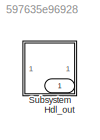
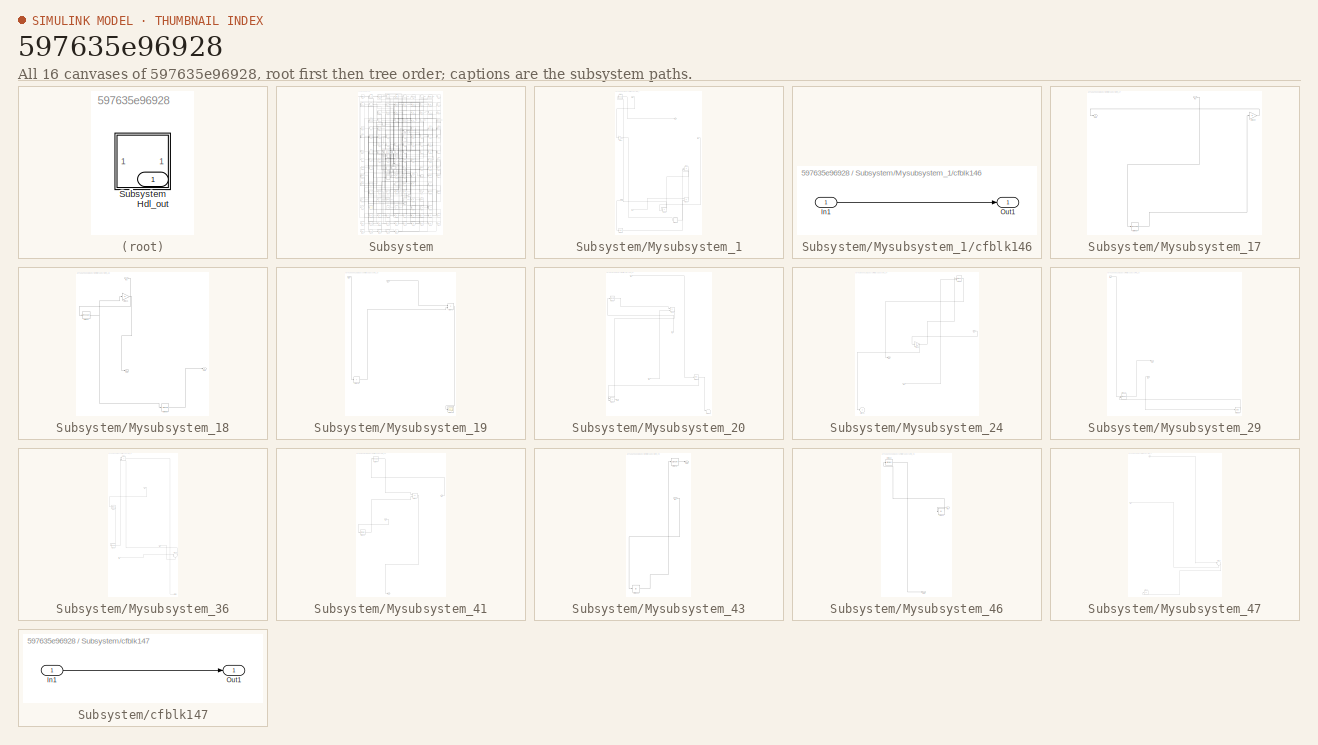
[diagram: thumbnail index - all 16 canvases of the model, root first then tree order]
MODEL slx_597635e96928
KIND model
CONFIG AbsTol = auto
CONFIG EnableMultiTasking = off
CONFIG FixedStep = auto
CONFIG MaxStep = auto
CONFIG MinStep = auto
CONFIG RelTol = 1e-3
CONFIG SampleTimeConstraint = Unconstrained
CONFIG SolverName = VariableStepAuto
CONFIG StartTime = 0.0
CONFIG StopTime = 10.0
BLOCK [Outport] Hdl_out
  OutDataTypeStr = uint8
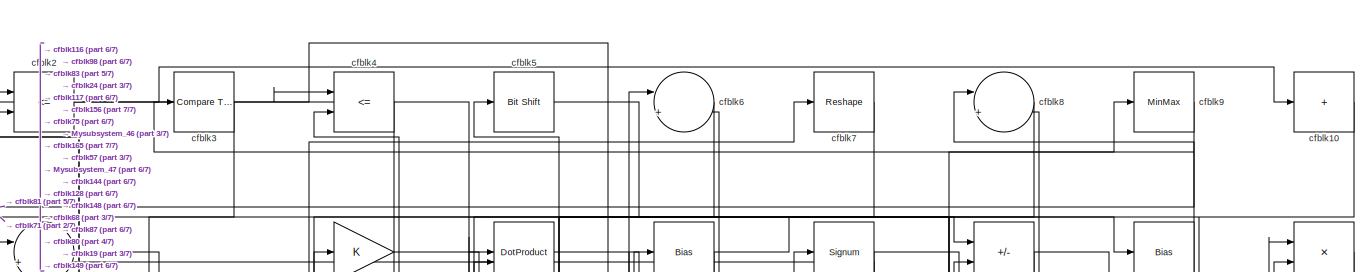
[diagram: Subsystem - part 1/7, full width, top band]
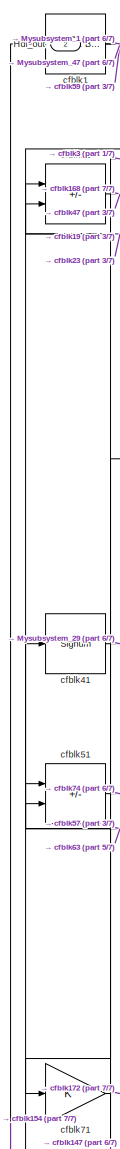
[diagram: Subsystem - part 2/7, top left region]
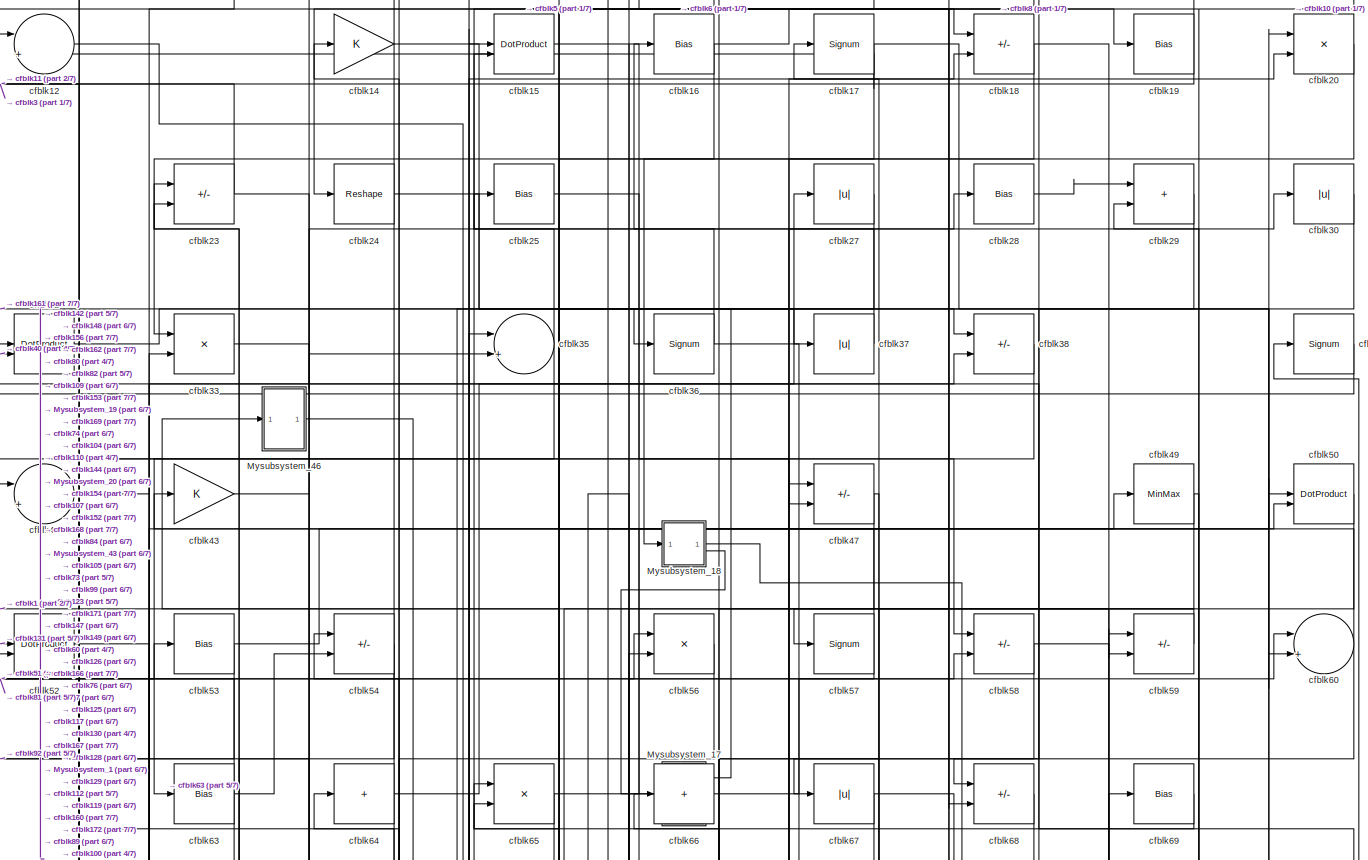
[diagram: Subsystem - part 3/7, full width, top band]
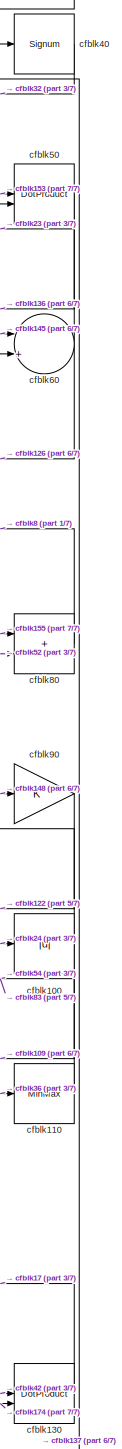
[diagram: Subsystem - part 4/7, middle right region]
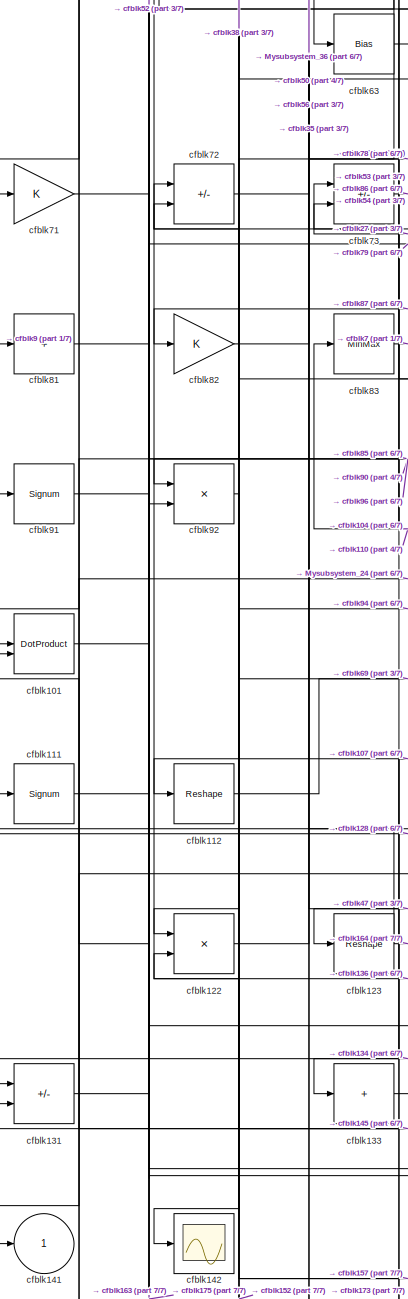
[diagram: Subsystem - part 5/7, middle left region]
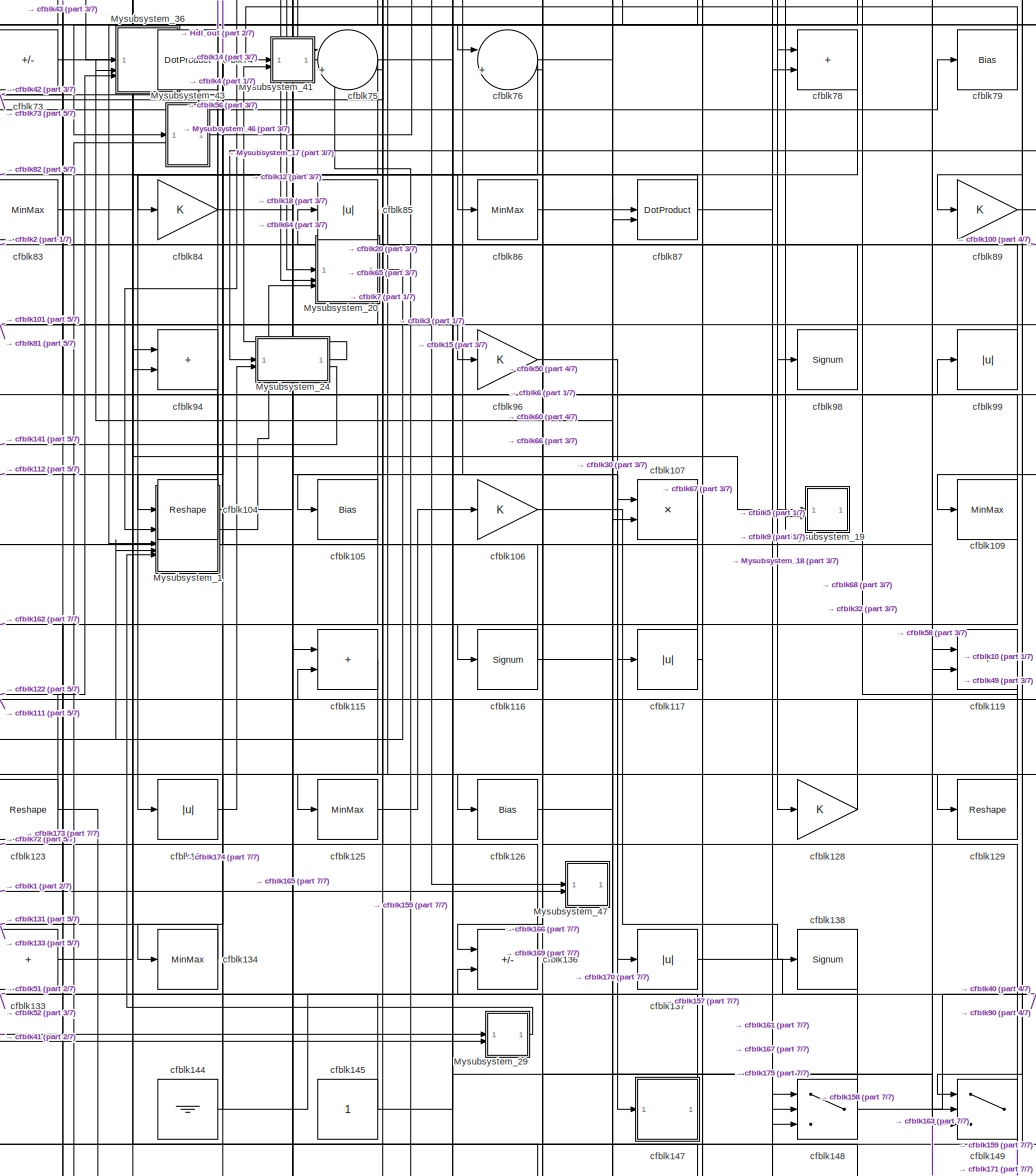
[diagram: Subsystem - part 6/7, central region]
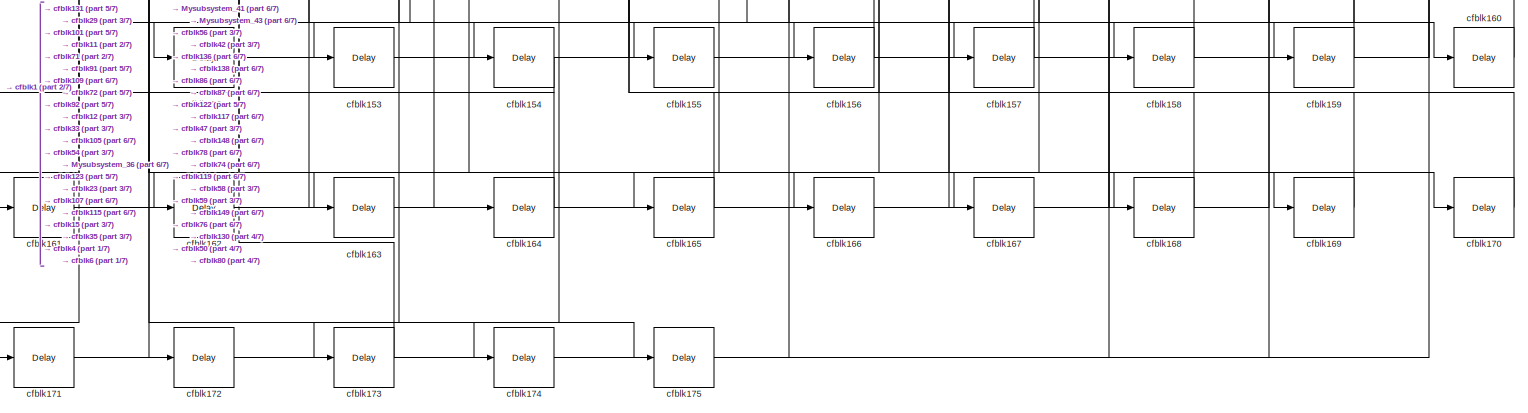
[diagram: Subsystem - part 7/7, full width, bottom band]
BLOCK [SubSystem] Subsystem
BLOCK [Outport] Subsystem/Hdl_out
  OutDataTypeStr = uint8
  Port = 2
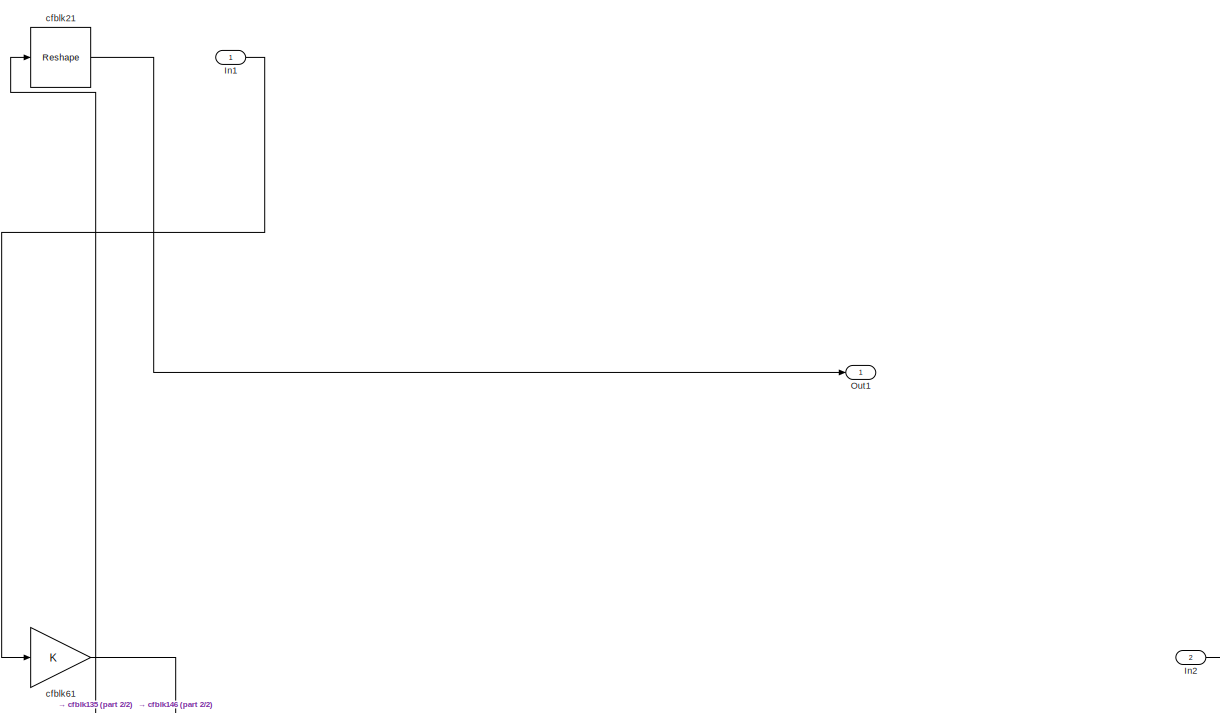
[diagram: Subsystem/Mysubsystem_1 - part 1/2, full width, top band]
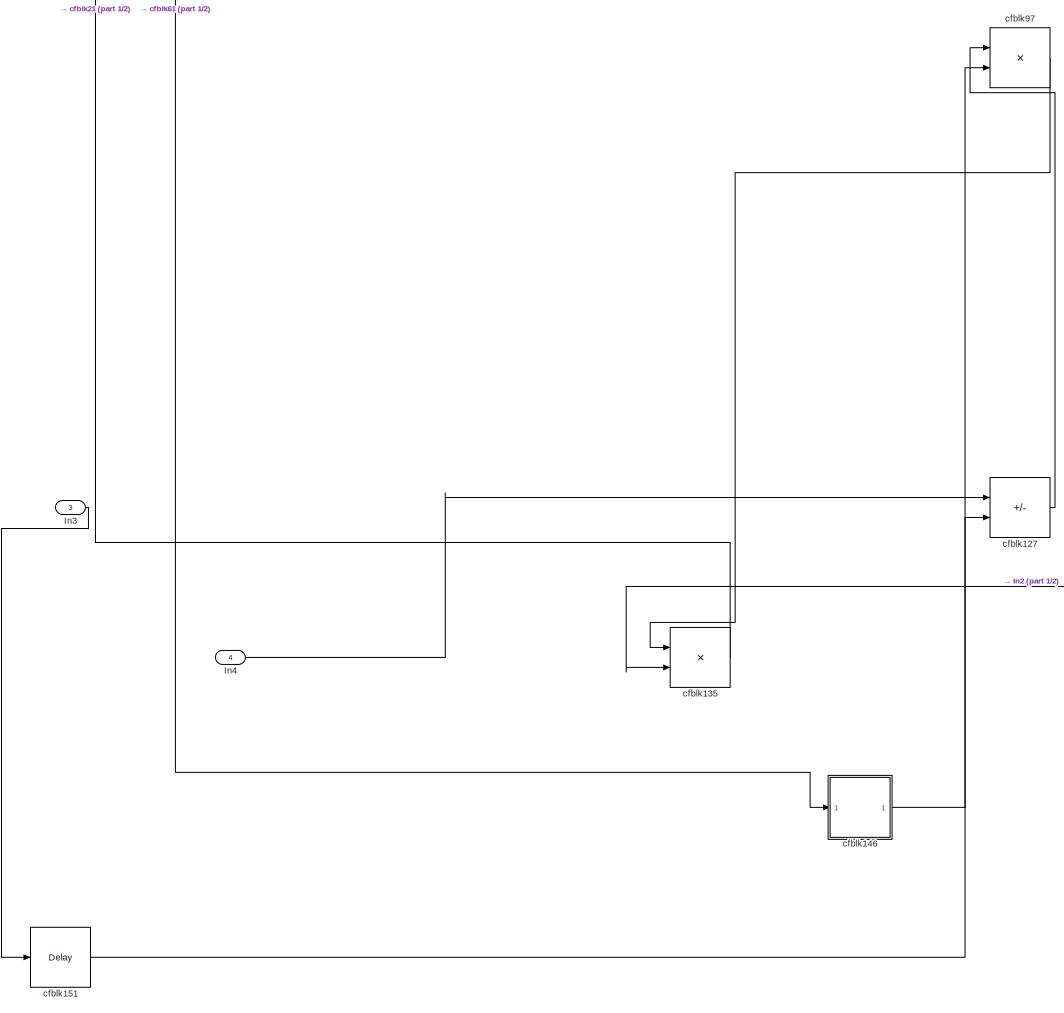
[diagram: Subsystem/Mysubsystem_1 - part 2/2, full width, bottom band]
BLOCK [SubSystem] Subsystem/Mysubsystem_1
  RTWFcnName = Mysubsystem_1
  RTWFcnNameOpts = User specified
  RTWFileNameOpts = Use function name
  RTWSystemCode = Reusable function
  TreatAsAtomicUnit = on
BLOCK [Inport] Subsystem/Mysubsystem_1/In1
BLOCK [Inport] Subsystem/Mysubsystem_1/In2
  Port = 2
BLOCK [Inport] Subsystem/Mysubsystem_1/In3
  Port = 3
BLOCK [Inport] Subsystem/Mysubsystem_1/In4
  Port = 4
BLOCK [Outport] Subsystem/Mysubsystem_1/Out1
BLOCK [Sum] Subsystem/Mysubsystem_1/cfblk127
  IconShape = rectangular
  Inputs = +-
BLOCK [Product] Subsystem/Mysubsystem_1/cfblk135
  Inputs = */
  RndMeth = Zero
  SaturateOnIntegerOverflow = on
BLOCK [SubSystem] Subsystem/Mysubsystem_1/cfblk146
  LibrarySourceBlock = hdlsllib/Ports &\nSubsystems/Subsystem
BLOCK [Inport] Subsystem/Mysubsystem_1/cfblk146/In1
BLOCK [Outport] Subsystem/Mysubsystem_1/cfblk146/Out1
BLOCK [Delay] Subsystem/Mysubsystem_1/cfblk151
  InputPortMap = u0
  SampleTime = 1
BLOCK [Reshape] Subsystem/Mysubsystem_1/cfblk21
BLOCK [Gain] Subsystem/Mysubsystem_1/cfblk61
BLOCK [Product] Subsystem/Mysubsystem_1/cfblk97
  Inputs = */
  RndMeth = Zero
  SaturateOnIntegerOverflow = on
BLOCK [SubSystem] Subsystem/Mysubsystem_17
  RTWFcnName = Mysubsystem_17
  RTWFcnNameOpts = User specified
  RTWFileNameOpts = Use function name
  RTWSystemCode = Reusable function
  TreatAsAtomicUnit = on
BLOCK [Inport] Subsystem/Mysubsystem_17/In1
BLOCK [Outport] Subsystem/Mysubsystem_17/Out1
BLOCK [Gain] Subsystem/Mysubsystem_17/cfblk39
BLOCK [Reshape] Subsystem/Mysubsystem_17/cfblk93
BLOCK [SubSystem] Subsystem/Mysubsystem_18
  RTWFcnName = Mysubsystem_18
  RTWFcnNameOpts = User specified
  RTWFileNameOpts = Use function name
  RTWSystemCode = Reusable function
  TreatAsAtomicUnit = on
BLOCK [Inport] Subsystem/Mysubsystem_18/In1
BLOCK [Outport] Subsystem/Mysubsystem_18/Out1
BLOCK [Outport] Subsystem/Mysubsystem_18/Out2
  Port = 2
BLOCK [Gain] Subsystem/Mysubsystem_18/cfblk26
BLOCK [Reshape] Subsystem/Mysubsystem_18/cfblk34
BLOCK [Signum] Subsystem/Mysubsystem_18/cfblk88
BLOCK [SubSystem] Subsystem/Mysubsystem_19
  RTWFcnName = Mysubsystem_19
  RTWFcnNameOpts = User specified
  RTWFileNameOpts = Use function name
  RTWSystemCode = Reusable function
  TreatAsAtomicUnit = on
BLOCK [Inport] Subsystem/Mysubsystem_19/In1
BLOCK [Inport] Subsystem/Mysubsystem_19/In2
  Port = 2
BLOCK [Sum] Subsystem/Mysubsystem_19/cfblk114
  IconShape = rectangular
  Inputs = +
BLOCK [Scope] Subsystem/Mysubsystem_19/cfblk140
  Floating = off
  NumInputPorts = 1
  ScopeSpecificationString = Simulink.scopes.TimeScopeBlockCfg('CurrentConfiguration', extmgr.ConfigurationSet(extmgr.Configuration('Core','General UI',true),extmgr.Configuration('Core','Source UI',true),extmgr.Configuration('Sources','WiredSimulink',true,'DataLoggingVariableName','ScopeData2','DataLoggingSaveFormat','Array','DataLoggingLimitDataPoints',true,'DataLoggingDecimation','1'),extmgr.Configuration('Visuals','Time Do...<+868ch>
BLOCK [Product] Subsystem/Mysubsystem_19/cfblk70
  Inputs = */
  RndMeth = Zero
  SaturateOnIntegerOverflow = on
BLOCK [SubSystem] Subsystem/Mysubsystem_20
  RTWFcnName = Mysubsystem_20
  RTWFcnNameOpts = User specified
  RTWFileNameOpts = Use function name
  RTWSystemCode = Reusable function
  TreatAsAtomicUnit = on
BLOCK [Inport] Subsystem/Mysubsystem_20/In1
BLOCK [Inport] Subsystem/Mysubsystem_20/In2
  Port = 2
BLOCK [Inport] Subsystem/Mysubsystem_20/In3
  Port = 3
BLOCK [Outport] Subsystem/Mysubsystem_20/Out1
BLOCK [Bias] Subsystem/Mysubsystem_20/cfblk108
  Bias = 0.0
  SaturateOnIntegerOverflow = off
BLOCK [Sum] Subsystem/Mysubsystem_20/cfblk121
  IconShape = rectangular
BLOCK [Terminator] Subsystem/Mysubsystem_20/cfblk139
BLOCK [Signum] Subsystem/Mysubsystem_20/cfblk31
BLOCK [Product] Subsystem/Mysubsystem_20/cfblk46
  Inputs = */
  RndMeth = Zero
  SaturateOnIntegerOverflow = on
BLOCK [SubSystem] Subsystem/Mysubsystem_24
  RTWFcnName = Mysubsystem_24
  RTWFcnNameOpts = User specified
  RTWFileNameOpts = Use function name
  RTWSystemCode = Reusable function
  TreatAsAtomicUnit = on
BLOCK [Inport] Subsystem/Mysubsystem_24/In1
BLOCK [Inport] Subsystem/Mysubsystem_24/In2
  Port = 2
BLOCK [Outport] Subsystem/Mysubsystem_24/Out1
BLOCK [Outport] Subsystem/Mysubsystem_24/cfblk141
  Port = 2
  VectorParamsAs1DForOutWhenUnconnected = off
BLOCK [DotProduct] Subsystem/Mysubsystem_24/cfblk48
  OutDataTypeStr = Inherit: Inherit via internal rule
BLOCK [Gain] Subsystem/Mysubsystem_24/cfblk95
BLOCK [SubSystem] Subsystem/Mysubsystem_29
  RTWFcnName = Mysubsystem_29
  RTWFcnNameOpts = User specified
  RTWFileNameOpts = Use function name
  RTWSystemCode = Reusable function
  TreatAsAtomicUnit = on
BLOCK [Inport] Subsystem/Mysubsystem_29/In1
BLOCK [Inport] Subsystem/Mysubsystem_29/In2
  Port = 2
BLOCK [Outport] Subsystem/Mysubsystem_29/Out1
BLOCK [DotProduct] Subsystem/Mysubsystem_29/cfblk132
  OutDataTypeStr = Inherit: Inherit via internal rule
BLOCK [Delay] Subsystem/Mysubsystem_29/cfblk150
  InputPortMap = u0
  SampleTime = 1
BLOCK [SubSystem] Subsystem/Mysubsystem_36
  RTWFcnName = Mysubsystem_36
  RTWFcnNameOpts = User specified
  RTWFileNameOpts = Use function name
  RTWSystemCode = Reusable function
  TreatAsAtomicUnit = on
BLOCK [Inport] Subsystem/Mysubsystem_36/In1
BLOCK [Inport] Subsystem/Mysubsystem_36/In2
  Port = 2
BLOCK [Inport] Subsystem/Mysubsystem_36/In3
  Port = 3
BLOCK [Outport] Subsystem/Mysubsystem_36/Out1
BLOCK [Reshape] Subsystem/Mysubsystem_36/cfblk102
BLOCK [Sum] Subsystem/Mysubsystem_36/cfblk118
  Inputs = |++
BLOCK [Sum] Subsystem/Mysubsystem_36/cfblk13
  IconShape = rectangular
BLOCK [MinMax] Subsystem/Mysubsystem_36/cfblk62
BLOCK [SubSystem] Subsystem/Mysubsystem_41
  RTWFcnName = Mysubsystem_41
  RTWFcnNameOpts = User specified
  RTWFileNameOpts = Use function name
  RTWSystemCode = Reusable function
  TreatAsAtomicUnit = on
BLOCK [Inport] Subsystem/Mysubsystem_41/In1
BLOCK [Inport] Subsystem/Mysubsystem_41/In2
  Port = 2
BLOCK [Outport] Subsystem/Mysubsystem_41/Out1
BLOCK [MinMax] Subsystem/Mysubsystem_41/cfblk103
BLOCK [Reshape] Subsystem/Mysubsystem_41/cfblk44
BLOCK [Sum] Subsystem/Mysubsystem_41/cfblk77
  IconShape = rectangular
  Inputs = +-
BLOCK [SubSystem] Subsystem/Mysubsystem_43
  RTWFcnName = Mysubsystem_43
  RTWFcnNameOpts = User specified
  RTWFileNameOpts = Use function name
  RTWSystemCode = Reusable function
  TreatAsAtomicUnit = on
BLOCK [Inport] Subsystem/Mysubsystem_43/In1
BLOCK [Outport] Subsystem/Mysubsystem_43/Out1
BLOCK [Abs] Subsystem/Mysubsystem_43/cfblk113
  SaturateOnIntegerOverflow = off
BLOCK [Signum] Subsystem/Mysubsystem_43/cfblk45
BLOCK [SubSystem] Subsystem/Mysubsystem_46
  RTWFcnName = Mysubsystem_46
  RTWFcnNameOpts = User specified
  RTWFileNameOpts = Use function name
  RTWSystemCode = Reusable function
  TreatAsAtomicUnit = on
BLOCK [Inport] Subsystem/Mysubsystem_46/In1
BLOCK [Outport] Subsystem/Mysubsystem_46/Out1
BLOCK [MinMax] Subsystem/Mysubsystem_46/cfblk22
BLOCK [Abs] Subsystem/Mysubsystem_46/cfblk55
  SaturateOnIntegerOverflow = off
BLOCK [SubSystem] Subsystem/Mysubsystem_47
  RTWFcnName = Mysubsystem_47
  RTWFcnNameOpts = User specified
  RTWFileNameOpts = Use function name
  RTWSystemCode = Reusable function
  TreatAsAtomicUnit = on
BLOCK [Inport] Subsystem/Mysubsystem_47/In1
BLOCK [Inport] Subsystem/Mysubsystem_47/In2
  Port = 2
BLOCK [Sum] Subsystem/Mysubsystem_47/cfblk120
  Inputs = |++
BLOCK [Display] Subsystem/Mysubsystem_47/cfblk143
  Decimation = 1
BLOCK [Reference] Subsystem/cfblk1  REF=simulink/Logic and Bit
Operations/Extract Bits
  LibrarySourceBlock = hdlsllib/Logic and Bit\nOperations/Extract Bits
  SourceBlock = simulink/Logic and Bit\nOperations/Extract Bits
  SourceType = Extract Bits
BLOCK [Sum] Subsystem/cfblk10
  IconShape = rectangular
  Inputs = +
  OutDataTypeStr = uint8
BLOCK [Abs] Subsystem/cfblk100
  OutDataTypeStr = uint8
  SaturateOnIntegerOverflow = off
BLOCK [DotProduct] Subsystem/cfblk101
  OutDataTypeStr = uint8
BLOCK [Reshape] Subsystem/cfblk104
BLOCK [Bias] Subsystem/cfblk105
  Bias = 0.0
  SaturateOnIntegerOverflow = off
BLOCK [Gain] Subsystem/cfblk106
  OutDataTypeStr = uint8
BLOCK [Product] Subsystem/cfblk107
  Inputs = */
  OutDataTypeStr = uint8
  RndMeth = Zero
  SaturateOnIntegerOverflow = on
BLOCK [MinMax] Subsystem/cfblk109
  OutDataTypeStr = uint8
BLOCK [Sum] Subsystem/cfblk11
  IconShape = rectangular
  Inputs = +-
  OutDataTypeStr = uint8
BLOCK [MinMax] Subsystem/cfblk110
  OutDataTypeStr = uint8
BLOCK [Signum] Subsystem/cfblk111
BLOCK [Reshape] Subsystem/cfblk112
BLOCK [Sum] Subsystem/cfblk115
  IconShape = rectangular
  OutDataTypeStr = uint8
BLOCK [Signum] Subsystem/cfblk116
BLOCK [Abs] Subsystem/cfblk117
  OutDataTypeStr = uint8
  SaturateOnIntegerOverflow = off
BLOCK [Sum] Subsystem/cfblk119
  IconShape = rectangular
  OutDataTypeStr = uint8
BLOCK [Sum] Subsystem/cfblk12
  Inputs = |++
  OutDataTypeStr = uint8
BLOCK [Product] Subsystem/cfblk122
  Inputs = */
  OutDataTypeStr = uint8
  RndMeth = Zero
  SaturateOnIntegerOverflow = on
BLOCK [Reshape] Subsystem/cfblk123
BLOCK [Abs] Subsystem/cfblk124
  OutDataTypeStr = uint8
  SaturateOnIntegerOverflow = off
BLOCK [MinMax] Subsystem/cfblk125
  OutDataTypeStr = uint8
BLOCK [Bias] Subsystem/cfblk126
  Bias = 0.0
  SaturateOnIntegerOverflow = off
BLOCK [Gain] Subsystem/cfblk128
  OutDataTypeStr = uint8
BLOCK [Reshape] Subsystem/cfblk129
BLOCK [DotProduct] Subsystem/cfblk130
  OutDataTypeStr = uint8
BLOCK [Sum] Subsystem/cfblk131
  IconShape = rectangular
  Inputs = +-
  OutDataTypeStr = uint8
BLOCK [Sum] Subsystem/cfblk133
  IconShape = rectangular
  Inputs = +
  OutDataTypeStr = uint8
BLOCK [MinMax] Subsystem/cfblk134
  OutDataTypeStr = uint8
BLOCK [Sum] Subsystem/cfblk136
  IconShape = rectangular
  Inputs = +-
  OutDataTypeStr = uint8
BLOCK [Abs] Subsystem/cfblk137
  OutDataTypeStr = uint8
  SaturateOnIntegerOverflow = off
BLOCK [Signum] Subsystem/cfblk138
BLOCK [Gain] Subsystem/cfblk14
  OutDataTypeStr = uint8
BLOCK [Outport] Subsystem/cfblk141
  OutDataTypeStr = uint8
  VectorParamsAs1DForOutWhenUnconnected = off
BLOCK [Scope] Subsystem/cfblk142
  Floating = off
  NumInputPorts = 1
  ScopeSpecificationString = Simulink.scopes.TimeScopeBlockCfg('CurrentConfiguration', extmgr.ConfigurationSet(extmgr.Configuration('Core','General UI',true),extmgr.Configuration('Core','Source UI',true),extmgr.Configuration('Sources','WiredSimulink',true,'DataLoggingVariableName','ScopeData1','DataLoggingSaveFormat','Array','DataLoggingLimitDataPoints',true,'DataLoggingDecimation','1'),extmgr.Configuration('Visuals','Time Do...<+868ch>
BLOCK [Ground] Subsystem/cfblk144
BLOCK [Constant] Subsystem/cfblk145
  OutDataTypeStr = uint8
  SampleTime = -1
BLOCK [SubSystem] Subsystem/cfblk147
  LibrarySourceBlock = hdlsllib/Ports &\nSubsystems/Subsystem
BLOCK [Inport] Subsystem/cfblk147/In1
BLOCK [Outport] Subsystem/cfblk147/Out1
BLOCK [Switch] Subsystem/cfblk148
  InputSameDT = off
  OutDataTypeStr = uint8
  SaturateOnIntegerOverflow = off
BLOCK [Switch] Subsystem/cfblk149
  InputSameDT = off
  OutDataTypeStr = uint8
  SaturateOnIntegerOverflow = off
BLOCK [DotProduct] Subsystem/cfblk15
  OutDataTypeStr = uint8
BLOCK [Delay] Subsystem/cfblk152
  InputPortMap = u0
  SampleTime = 1
BLOCK [Delay] Subsystem/cfblk153
  InputPortMap = u0
  SampleTime = 1
BLOCK [Delay] Subsystem/cfblk154
  InputPortMap = u0
  SampleTime = 1
BLOCK [Delay] Subsystem/cfblk155
  InputPortMap = u0
  SampleTime = 1
BLOCK [Delay] Subsystem/cfblk156
  InputPortMap = u0
  SampleTime = 1
BLOCK [Delay] Subsystem/cfblk157
  InputPortMap = u0
  SampleTime = 1
BLOCK [Delay] Subsystem/cfblk158
  InputPortMap = u0
  SampleTime = 1
BLOCK [Delay] Subsystem/cfblk159
  InputPortMap = u0
  SampleTime = 1
BLOCK [Bias] Subsystem/cfblk16
  Bias = 0.0
  SaturateOnIntegerOverflow = off
BLOCK [Delay] Subsystem/cfblk160
  InputPortMap = u0
  SampleTime = 1
BLOCK [Delay] Subsystem/cfblk161
  InputPortMap = u0
  SampleTime = 1
BLOCK [Delay] Subsystem/cfblk162
  InputPortMap = u0
  SampleTime = 1
BLOCK [Delay] Subsystem/cfblk163
  InputPortMap = u0
  SampleTime = 1
BLOCK [Delay] Subsystem/cfblk164
  InputPortMap = u0
  SampleTime = 1
BLOCK [Delay] Subsystem/cfblk165
  InputPortMap = u0
  SampleTime = 1
BLOCK [Delay] Subsystem/cfblk166
  InputPortMap = u0
  SampleTime = 1
BLOCK [Delay] Subsystem/cfblk167
  InputPortMap = u0
  SampleTime = 1
BLOCK [Delay] Subsystem/cfblk168
  InputPortMap = u0
  SampleTime = 1
BLOCK [Delay] Subsystem/cfblk169
  InputPortMap = u0
  SampleTime = 1
BLOCK [Signum] Subsystem/cfblk17
BLOCK [Delay] Subsystem/cfblk170
  InputPortMap = u0
  SampleTime = 1
BLOCK [Delay] Subsystem/cfblk171
  InputPortMap = u0
  SampleTime = 1
BLOCK [Delay] Subsystem/cfblk172
  InputPortMap = u0
  SampleTime = 1
BLOCK [Delay] Subsystem/cfblk173
  InputPortMap = u0
  SampleTime = 1
BLOCK [Delay] Subsystem/cfblk174
  InputPortMap = u0
  SampleTime = 1
BLOCK [Delay] Subsystem/cfblk175
  InputPortMap = u0
  SampleTime = 1
BLOCK [Sum] Subsystem/cfblk18
  IconShape = rectangular
  Inputs = +-
  OutDataTypeStr = uint8
BLOCK [Bias] Subsystem/cfblk19
  Bias = 0.0
  SaturateOnIntegerOverflow = off
BLOCK [RelationalOperator] Subsystem/cfblk2
  InputSameDT = off
  Operator = <=
  OutDataTypeStr = boolean
BLOCK [Product] Subsystem/cfblk20
  Inputs = */
  OutDataTypeStr = uint8
  RndMeth = Zero
  SaturateOnIntegerOverflow = on
BLOCK [Sum] Subsystem/cfblk23
  IconShape = rectangular
  Inputs = +-
  OutDataTypeStr = uint8
BLOCK [Reshape] Subsystem/cfblk24
BLOCK [Bias] Subsystem/cfblk25
  Bias = 0.0
  SaturateOnIntegerOverflow = off
BLOCK [Abs] Subsystem/cfblk27
  OutDataTypeStr = uint8
  SaturateOnIntegerOverflow = off
BLOCK [Bias] Subsystem/cfblk28
  Bias = 0.0
  SaturateOnIntegerOverflow = off
BLOCK [Sum] Subsystem/cfblk29
  IconShape = rectangular
  OutDataTypeStr = uint8
BLOCK [Reference] Subsystem/cfblk3  REF=hdlsllib/Logic and Bit
Operations/Compare
To Zero
  SourceBlock = hdlsllib/Logic and Bit\nOperations/Compare\nTo Zero
  SourceType = Compare To Zero
BLOCK [Abs] Subsystem/cfblk30
  OutDataTypeStr = uint8
  SaturateOnIntegerOverflow = off
BLOCK [DotProduct] Subsystem/cfblk32
  OutDataTypeStr = uint8
BLOCK [Product] Subsystem/cfblk33
  Inputs = */
  OutDataTypeStr = uint8
  RndMeth = Zero
  SaturateOnIntegerOverflow = on
BLOCK [Sum] Subsystem/cfblk35
  Inputs = |++
  OutDataTypeStr = uint8
BLOCK [Signum] Subsystem/cfblk36
BLOCK [Abs] Subsystem/cfblk37
  OutDataTypeStr = uint8
  SaturateOnIntegerOverflow = off
BLOCK [Sum] Subsystem/cfblk38
  IconShape = rectangular
  Inputs = +-
  OutDataTypeStr = uint8
BLOCK [RelationalOperator] Subsystem/cfblk4
  InputSameDT = off
  Operator = <=
  OutDataTypeStr = boolean
BLOCK [Signum] Subsystem/cfblk40
BLOCK [Signum] Subsystem/cfblk41
BLOCK [Sum] Subsystem/cfblk42
  Inputs = |++
  OutDataTypeStr = uint8
BLOCK [Gain] Subsystem/cfblk43
  OutDataTypeStr = uint8
BLOCK [Sum] Subsystem/cfblk47
  IconShape = rectangular
  Inputs = +-
  OutDataTypeStr = uint8
BLOCK [MinMax] Subsystem/cfblk49
  OutDataTypeStr = uint8
BLOCK [Reference] Subsystem/cfblk5  REF=hdlsllib/Logic and Bit
Operations/Bit Shift
  SourceBlock = hdlsllib/Logic and Bit\nOperations/Bit Shift
  SourceType = Bit Shift
BLOCK [DotProduct] Subsystem/cfblk50
  OutDataTypeStr = uint8
BLOCK [Sum] Subsystem/cfblk51
  IconShape = rectangular
  Inputs = +-
  OutDataTypeStr = uint8
BLOCK [DotProduct] Subsystem/cfblk52
  OutDataTypeStr = uint8
BLOCK [Bias] Subsystem/cfblk53
  Bias = 0.0
  SaturateOnIntegerOverflow = off
BLOCK [Sum] Subsystem/cfblk54
  IconShape = rectangular
  Inputs = +-
  OutDataTypeStr = uint8
BLOCK [Product] Subsystem/cfblk56
  Inputs = */
  OutDataTypeStr = uint8
  RndMeth = Zero
  SaturateOnIntegerOverflow = on
BLOCK [Signum] Subsystem/cfblk57
BLOCK [Sum] Subsystem/cfblk58
  IconShape = rectangular
  Inputs = +-
  OutDataTypeStr = uint8
BLOCK [Sum] Subsystem/cfblk59
  IconShape = rectangular
  Inputs = +-
  OutDataTypeStr = uint8
BLOCK [Sum] Subsystem/cfblk6
  Inputs = |++
  OutDataTypeStr = uint8
BLOCK [Sum] Subsystem/cfblk60
  Inputs = |++
  OutDataTypeStr = uint8
BLOCK [Bias] Subsystem/cfblk63
  Bias = 0.0
  SaturateOnIntegerOverflow = off
BLOCK [Sum] Subsystem/cfblk64
  IconShape = rectangular
  Inputs = +
  OutDataTypeStr = uint8
BLOCK [Product] Subsystem/cfblk65
  Inputs = */
  OutDataTypeStr = uint8
  RndMeth = Zero
  SaturateOnIntegerOverflow = on
BLOCK [Sum] Subsystem/cfblk66
  IconShape = rectangular
  Inputs = +
  OutDataTypeStr = uint8
BLOCK [Abs] Subsystem/cfblk67
  OutDataTypeStr = uint8
  SaturateOnIntegerOverflow = off
BLOCK [Sum] Subsystem/cfblk68
  IconShape = rectangular
  Inputs = +-
  OutDataTypeStr = uint8
BLOCK [Bias] Subsystem/cfblk69
  Bias = 0.0
  SaturateOnIntegerOverflow = off
BLOCK [Reshape] Subsystem/cfblk7
BLOCK [Gain] Subsystem/cfblk71
  OutDataTypeStr = uint8
BLOCK [Sum] Subsystem/cfblk72
  IconShape = rectangular
  Inputs = +-
  OutDataTypeStr = uint8
BLOCK [Sum] Subsystem/cfblk73
  IconShape = rectangular
  Inputs = +-
  OutDataTypeStr = uint8
BLOCK [DotProduct] Subsystem/cfblk74
  OutDataTypeStr = uint8
BLOCK [Sum] Subsystem/cfblk75
  Inputs = |++
  OutDataTypeStr = uint8
BLOCK [Sum] Subsystem/cfblk76
  Inputs = |++
  OutDataTypeStr = uint8
BLOCK [Sum] Subsystem/cfblk78
  IconShape = rectangular
  OutDataTypeStr = uint8
BLOCK [Bias] Subsystem/cfblk79
  Bias = 0.0
  SaturateOnIntegerOverflow = off
BLOCK [Sum] Subsystem/cfblk8
  Inputs = |++
  OutDataTypeStr = uint8
BLOCK [Sum] Subsystem/cfblk80
  IconShape = rectangular
  OutDataTypeStr = uint8
BLOCK [Sum] Subsystem/cfblk81
  IconShape = rectangular
  Inputs = +
  OutDataTypeStr = uint8
BLOCK [Gain] Subsystem/cfblk82
  OutDataTypeStr = uint8
BLOCK [MinMax] Subsystem/cfblk83
  OutDataTypeStr = uint8
BLOCK [Gain] Subsystem/cfblk84
  OutDataTypeStr = uint8
BLOCK [Abs] Subsystem/cfblk85
  OutDataTypeStr = uint8
  SaturateOnIntegerOverflow = off
BLOCK [MinMax] Subsystem/cfblk86
  OutDataTypeStr = uint8
BLOCK [DotProduct] Subsystem/cfblk87
  OutDataTypeStr = uint8
BLOCK [Gain] Subsystem/cfblk89
  OutDataTypeStr = uint8
BLOCK [MinMax] Subsystem/cfblk9
  OutDataTypeStr = uint8
BLOCK [Gain] Subsystem/cfblk90
  OutDataTypeStr = uint8
BLOCK [Signum] Subsystem/cfblk91
BLOCK [Product] Subsystem/cfblk92
  Inputs = */
  OutDataTypeStr = uint8
  RndMeth = Zero
  SaturateOnIntegerOverflow = on
BLOCK [Sum] Subsystem/cfblk94
  IconShape = rectangular
  OutDataTypeStr = uint8
BLOCK [Gain] Subsystem/cfblk96
  OutDataTypeStr = uint8
BLOCK [Signum] Subsystem/cfblk98
BLOCK [Abs] Subsystem/cfblk99
  OutDataTypeStr = uint8
  SaturateOnIntegerOverflow = off
LINE Subsystem/Mysubsystem_1/In1:1 -> Subsystem/Mysubsystem_1/cfblk61:1
LINE Subsystem/Mysubsystem_1/In2:1 -> Subsystem/Mysubsystem_1/cfblk135:2
LINE Subsystem/Mysubsystem_1/In3:1 -> Subsystem/Mysubsystem_1/cfblk151:1
LINE Subsystem/Mysubsystem_1/In4:1 -> Subsystem/Mysubsystem_1/cfblk127:1
LINE Subsystem/Mysubsystem_1/cfblk127:1 -> Subsystem/Mysubsystem_1/cfblk97:1
LINE Subsystem/Mysubsystem_1/cfblk135:1 -> Subsystem/Mysubsystem_1/cfblk21:1
LINE Subsystem/Mysubsystem_1/cfblk146/In1:1 -> Subsystem/Mysubsystem_1/cfblk146/Out1:1
LINE Subsystem/Mysubsystem_1/cfblk146:1 -> Subsystem/Mysubsystem_1/cfblk97:2
LINE Subsystem/Mysubsystem_1/cfblk151:1 -> Subsystem/Mysubsystem_1/cfblk127:2
LINE Subsystem/Mysubsystem_1/cfblk21:1 -> Subsystem/Mysubsystem_1/Out1:1
LINE Subsystem/Mysubsystem_1/cfblk61:1 -> Subsystem/Mysubsystem_1/cfblk146:1
LINE Subsystem/Mysubsystem_1/cfblk97:1 -> Subsystem/Mysubsystem_1/cfblk135:1
LINE Subsystem/Mysubsystem_17/In1:1 -> Subsystem/Mysubsystem_17/cfblk93:1
LINE Subsystem/Mysubsystem_17/cfblk39:1 -> Subsystem/Mysubsystem_17/Out1:1
LINE Subsystem/Mysubsystem_17/cfblk93:1 -> Subsystem/Mysubsystem_17/cfblk39:1
LINE Subsystem/Mysubsystem_17:1 -> Subsystem/Mysubsystem_20:2
LINE Subsystem/Mysubsystem_18/In1:1 -> Subsystem/Mysubsystem_18/cfblk34:1
LINE Subsystem/Mysubsystem_18/cfblk26:1 -> Subsystem/Mysubsystem_18/Out2:1
NET Subsystem/Mysubsystem_18/cfblk34:1 -> Subsystem/Mysubsystem_18/cfblk26:1, Subsystem/Mysubsystem_18/cfblk88:1
LINE Subsystem/Mysubsystem_18/cfblk88:1 -> Subsystem/Mysubsystem_18/Out1:1
LINE Subsystem/Mysubsystem_18:1 -> Subsystem/Mysubsystem_19:2
LINE Subsystem/Mysubsystem_18:2 -> Subsystem/Mysubsystem_17:1
LINE Subsystem/Mysubsystem_19/In1:1 -> Subsystem/Mysubsystem_19/cfblk114:1
LINE Subsystem/Mysubsystem_19/In2:1 -> Subsystem/Mysubsystem_19/cfblk70:1
LINE Subsystem/Mysubsystem_19/cfblk114:1 -> Subsystem/Mysubsystem_19/cfblk70:2
LINE Subsystem/Mysubsystem_19/cfblk70:1 -> Subsystem/Mysubsystem_19/cfblk140:1
NET Subsystem/Mysubsystem_1:1 -> Subsystem/Hdl_out:1, Subsystem/Mysubsystem_20:3
LINE Subsystem/Mysubsystem_20/In1:1 -> Subsystem/Mysubsystem_20/cfblk108:1
LINE Subsystem/Mysubsystem_20/In2:1 -> Subsystem/Mysubsystem_20/cfblk31:1
LINE Subsystem/Mysubsystem_20/In3:1 -> Subsystem/Mysubsystem_20/cfblk46:2
NET Subsystem/Mysubsystem_20/cfblk108:1 -> Subsystem/Mysubsystem_20/cfblk121:2, Subsystem/Mysubsystem_20/cfblk139:1
LINE Subsystem/Mysubsystem_20/cfblk121:1 -> Subsystem/Mysubsystem_20/Out1:1
LINE Subsystem/Mysubsystem_20/cfblk31:1 -> Subsystem/Mysubsystem_20/cfblk46:1
LINE Subsystem/Mysubsystem_20/cfblk46:1 -> Subsystem/Mysubsystem_20/cfblk121:1
NET Subsystem/Mysubsystem_20:1 -> Subsystem/Mysubsystem_1:3, Subsystem/Mysubsystem_29:2
LINE Subsystem/Mysubsystem_24/In1:1 -> Subsystem/Mysubsystem_24/cfblk95:1
LINE Subsystem/Mysubsystem_24/In2:1 -> Subsystem/Mysubsystem_24/cfblk48:2
LINE Subsystem/Mysubsystem_24/cfblk48:1 -> Subsystem/Mysubsystem_24/Out1:1
NET Subsystem/Mysubsystem_24/cfblk95:1 -> Subsystem/Mysubsystem_24/cfblk141:1, Subsystem/Mysubsystem_24/cfblk48:1
LINE Subsystem/Mysubsystem_24:1 -> Subsystem/Mysubsystem_41:2
LINE Subsystem/Mysubsystem_24:2 -> Subsystem/cfblk141:1
LINE Subsystem/Mysubsystem_29/In1:1 -> Subsystem/Mysubsystem_29/cfblk132:1
LINE Subsystem/Mysubsystem_29/In2:1 -> Subsystem/Mysubsystem_29/cfblk150:1
LINE Subsystem/Mysubsystem_29/cfblk132:1 -> Subsystem/Mysubsystem_29/Out1:1
LINE Subsystem/Mysubsystem_29/cfblk150:1 -> Subsystem/Mysubsystem_29/cfblk132:2
LINE Subsystem/Mysubsystem_29:1 -> Subsystem/Mysubsystem_1:4
LINE Subsystem/Mysubsystem_36/In1:1 -> Subsystem/Mysubsystem_36/cfblk62:1
LINE Subsystem/Mysubsystem_36/In2:1 -> Subsystem/Mysubsystem_36/cfblk118:2
LINE Subsystem/Mysubsystem_36/In3:1 -> Subsystem/Mysubsystem_36/cfblk118:1
LINE Subsystem/Mysubsystem_36/cfblk102:1 -> Subsystem/Mysubsystem_36/cfblk13:1
LINE Subsystem/Mysubsystem_36/cfblk118:1 -> Subsystem/Mysubsystem_36/cfblk13:2
LINE Subsystem/Mysubsystem_36/cfblk13:1 -> Subsystem/Mysubsystem_36/Out1:1
LINE Subsystem/Mysubsystem_36/cfblk62:1 -> Subsystem/Mysubsystem_36/cfblk102:1
LINE Subsystem/Mysubsystem_36:1 -> Subsystem/cfblk158:1
LINE Subsystem/Mysubsystem_41/In1:1 -> Subsystem/Mysubsystem_41/cfblk44:1
LINE Subsystem/Mysubsystem_41/In2:1 -> Subsystem/Mysubsystem_41/cfblk103:1
LINE Subsystem/Mysubsystem_41/cfblk103:1 -> Subsystem/Mysubsystem_41/cfblk77:2
LINE Subsystem/Mysubsystem_41/cfblk44:1 -> Subsystem/Mysubsystem_41/cfblk77:1
LINE Subsystem/Mysubsystem_41/cfblk77:1 -> Subsystem/Mysubsystem_41/Out1:1
LINE Subsystem/Mysubsystem_41:1 -> Subsystem/cfblk155:1
LINE Subsystem/Mysubsystem_43/In1:1 -> Subsystem/Mysubsystem_43/cfblk113:1
LINE Subsystem/Mysubsystem_43/cfblk113:1 -> Subsystem/Mysubsystem_43/cfblk45:1
LINE Subsystem/Mysubsystem_43/cfblk45:1 -> Subsystem/Mysubsystem_43/Out1:1
NET Subsystem/Mysubsystem_43:1 -> Subsystem/Mysubsystem_36:1, Subsystem/cfblk159:1
LINE Subsystem/Mysubsystem_46/In1:1 -> Subsystem/Mysubsystem_46/cfblk55:1
LINE Subsystem/Mysubsystem_46/cfblk22:1 -> Subsystem/Mysubsystem_46/Out1:1
LINE Subsystem/Mysubsystem_46/cfblk55:1 -> Subsystem/Mysubsystem_46/cfblk22:1
LINE Subsystem/Mysubsystem_46:1 -> Subsystem/Mysubsystem_1:1
LINE Subsystem/Mysubsystem_47/In1:1 -> Subsystem/Mysubsystem_47/cfblk120:1
LINE Subsystem/Mysubsystem_47/In2:1 -> Subsystem/Mysubsystem_47/cfblk120:2
LINE Subsystem/Mysubsystem_47/cfblk120:1 -> Subsystem/Mysubsystem_47/cfblk143:1
NET Subsystem/cfblk100:1 -> Subsystem/cfblk109:1, Subsystem/cfblk23:2
LINE Subsystem/cfblk101:1 -> Subsystem/cfblk175:1
NET Subsystem/cfblk104:1 -> Subsystem/cfblk73:2, Subsystem/cfblk98:1
NET Subsystem/cfblk105:1 -> Subsystem/cfblk14:1, Subsystem/cfblk173:1
NET Subsystem/cfblk106:1 -> Subsystem/Mysubsystem_36:2, Subsystem/cfblk138:1
NET Subsystem/cfblk107:1 -> Subsystem/cfblk133:1, Subsystem/cfblk174:1
NET Subsystem/cfblk109:1 -> Subsystem/cfblk162:1, Subsystem/cfblk43:1
NET Subsystem/cfblk10:1 -> Subsystem/cfblk149:1, Subsystem/cfblk68:2, Subsystem/cfblk75:1
NET Subsystem/cfblk110:1 -> Subsystem/cfblk54:1, Subsystem/cfblk83:1
LINE Subsystem/cfblk111:1 -> Subsystem/cfblk79:1
LINE Subsystem/cfblk112:1 -> Subsystem/cfblk69:1
LINE Subsystem/cfblk115:1 -> Subsystem/cfblk134:1
NET Subsystem/cfblk116:1 -> Subsystem/cfblk149:3, Subsystem/cfblk2:2
NET Subsystem/cfblk117:1 -> Subsystem/cfblk157:1, Subsystem/cfblk4:2
LINE Subsystem/cfblk119:1 -> Subsystem/cfblk115:2
NET Subsystem/cfblk11:1 -> Subsystem/cfblk168:1, Subsystem/cfblk47:2
NET Subsystem/cfblk122:1 -> Subsystem/Mysubsystem_36:3, Subsystem/cfblk50:2
NET Subsystem/cfblk123:1 -> Subsystem/cfblk164:1, Subsystem/cfblk91:1
LINE Subsystem/cfblk124:1 -> Subsystem/Mysubsystem_24:2
LINE Subsystem/cfblk125:1 -> Subsystem/cfblk106:1
NET Subsystem/cfblk126:1 -> Subsystem/cfblk20:2, Subsystem/cfblk99:1
NET Subsystem/cfblk128:1 -> Subsystem/cfblk111:1, Subsystem/cfblk6:2
LINE Subsystem/cfblk129:1 -> Subsystem/cfblk32:1
NET Subsystem/cfblk12:1 -> Subsystem/Mysubsystem_20:1, Subsystem/cfblk154:1, Subsystem/cfblk18:1
LINE Subsystem/cfblk130:1 -> Subsystem/cfblk17:1
LINE Subsystem/cfblk131:1 -> Subsystem/cfblk52:1
LINE Subsystem/cfblk133:1 -> Subsystem/cfblk94:1
LINE Subsystem/cfblk134:1 -> Subsystem/cfblk131:1
NET Subsystem/cfblk136:1 -> Subsystem/cfblk72:1, Subsystem/cfblk85:1
LINE Subsystem/cfblk137:1 -> Subsystem/cfblk40:1
LINE Subsystem/cfblk138:1 -> Subsystem/cfblk166:1
NET Subsystem/cfblk144:1 -> Subsystem/cfblk64:1, Subsystem/cfblk6:1
NET Subsystem/cfblk145:1 -> Subsystem/cfblk101:2, Subsystem/cfblk149:2, Subsystem/cfblk60:1
LINE Subsystem/cfblk147/In1:1 -> Subsystem/cfblk147/Out1:1
LINE Subsystem/cfblk147:1 -> Subsystem/cfblk51:1
NET Subsystem/cfblk148:1 -> Subsystem/cfblk52:2, Subsystem/cfblk90:1
NET Subsystem/cfblk149:1 -> Subsystem/cfblk171:1, Subsystem/cfblk66:1
LINE Subsystem/cfblk14:1 -> Subsystem/cfblk37:1
LINE Subsystem/cfblk152:1 -> Subsystem/cfblk35:1
LINE Subsystem/cfblk153:1 -> Subsystem/cfblk50:1
LINE Subsystem/cfblk154:1 -> Subsystem/cfblk1:1
LINE Subsystem/cfblk155:1 -> Subsystem/cfblk80:1
LINE Subsystem/cfblk156:1 -> Subsystem/cfblk42:2
LINE Subsystem/cfblk157:1 -> Subsystem/cfblk122:2
LINE Subsystem/cfblk158:1 -> Subsystem/cfblk74:1
LINE Subsystem/cfblk159:1 -> Subsystem/cfblk76:2
NET Subsystem/cfblk15:1 -> Subsystem/cfblk107:2, Subsystem/cfblk147:1
LINE Subsystem/cfblk160:1 -> Subsystem/cfblk29:2
LINE Subsystem/cfblk161:1 -> Subsystem/cfblk78:2
LINE Subsystem/cfblk162:1 -> Subsystem/cfblk33:2
LINE Subsystem/cfblk163:1 -> Subsystem/cfblk119:2
LINE Subsystem/cfblk164:1 -> Subsystem/cfblk131:2
LINE Subsystem/cfblk165:1 -> Subsystem/cfblk115:1
LINE Subsystem/cfblk166:1 -> Subsystem/cfblk47:1
LINE Subsystem/cfblk167:1 -> Subsystem/cfblk148:3
LINE Subsystem/cfblk168:1 -> Subsystem/cfblk15:1
LINE Subsystem/cfblk169:1 -> Subsystem/cfblk136:2
NET Subsystem/cfblk16:1 -> Subsystem/Mysubsystem_18:1, Subsystem/cfblk19:1
LINE Subsystem/cfblk170:1 -> Subsystem/cfblk87:1
LINE Subsystem/cfblk171:1 -> Subsystem/cfblk56:2
LINE Subsystem/cfblk172:1 -> Subsystem/cfblk59:1
LINE Subsystem/cfblk173:1 -> Subsystem/cfblk72:2
LINE Subsystem/cfblk174:1 -> Subsystem/cfblk130:2
LINE Subsystem/cfblk175:1 -> Subsystem/cfblk148:1
NET Subsystem/cfblk17:1 -> Subsystem/cfblk12:2, Subsystem/cfblk33:1, Subsystem/cfblk60:2
NET Subsystem/cfblk18:1 -> Subsystem/cfblk119:1, Subsystem/cfblk87:2
NET Subsystem/cfblk19:1 -> Subsystem/cfblk11:2, Subsystem/cfblk3:1, Subsystem/cfblk8:1
NET Subsystem/cfblk1:1 -> Subsystem/Mysubsystem_47:2, Subsystem/cfblk59:2
LINE Subsystem/cfblk20:1 -> Subsystem/cfblk105:1
NET Subsystem/cfblk23:1 -> Subsystem/cfblk11:1, Subsystem/cfblk169:1
LINE Subsystem/cfblk24:1 -> Subsystem/cfblk100:1
LINE Subsystem/cfblk25:1 -> Subsystem/cfblk58:1
LINE Subsystem/cfblk27:1 -> Subsystem/cfblk73:1
LINE Subsystem/cfblk28:1 -> Subsystem/cfblk29:1
NET Subsystem/cfblk29:1 -> Subsystem/cfblk161:1, Subsystem/cfblk36:1
LINE Subsystem/cfblk2:1 -> Subsystem/cfblk10:1
LINE Subsystem/cfblk30:1 -> Subsystem/cfblk68:1
LINE Subsystem/cfblk32:1 -> Subsystem/cfblk38:1
LINE Subsystem/cfblk33:1 -> Subsystem/cfblk35:2
NET Subsystem/cfblk35:1 -> Subsystem/cfblk15:2, Subsystem/cfblk63:1
NET Subsystem/cfblk36:1 -> Subsystem/cfblk110:1, Subsystem/cfblk25:1
LINE Subsystem/cfblk37:1 -> Subsystem/cfblk16:1
LINE Subsystem/cfblk38:1 -> Subsystem/cfblk142:1
NET Subsystem/cfblk3:1 -> Subsystem/Mysubsystem_47:1, Subsystem/cfblk4:1, Subsystem/cfblk71:1
LINE Subsystem/cfblk40:1 -> Subsystem/cfblk32:2
LINE Subsystem/cfblk41:1 -> Subsystem/Mysubsystem_29:1
NET Subsystem/cfblk42:1 -> Subsystem/cfblk130:1, Subsystem/cfblk38:2
NET Subsystem/cfblk43:1 -> Subsystem/Mysubsystem_19:1, Subsystem/cfblk28:1
NET Subsystem/cfblk47:1 -> Subsystem/cfblk123:1, Subsystem/cfblk167:1, Subsystem/cfblk67:1
NET Subsystem/cfblk49:1 -> Subsystem/cfblk117:1, Subsystem/cfblk89:1
LINE Subsystem/cfblk4:1 -> Subsystem/cfblk156:1
LINE Subsystem/cfblk50:1 -> Subsystem/cfblk136:1
LINE Subsystem/cfblk51:1 -> Subsystem/cfblk74:2
LINE Subsystem/cfblk52:1 -> Subsystem/cfblk80:2
NET Subsystem/cfblk53:1 -> Subsystem/cfblk20:1, Subsystem/cfblk92:2
LINE Subsystem/cfblk54:1 -> Subsystem/cfblk153:1
LINE Subsystem/cfblk56:1 -> Subsystem/cfblk104:1
NET Subsystem/cfblk57:1 -> Subsystem/cfblk51:2, Subsystem/cfblk5:1
NET Subsystem/cfblk58:1 -> Subsystem/cfblk160:1, Subsystem/cfblk76:1
LINE Subsystem/cfblk59:1 -> Subsystem/cfblk57:1
LINE Subsystem/cfblk5:1 -> Subsystem/cfblk148:2
NET Subsystem/cfblk60:1 -> Subsystem/cfblk126:1, Subsystem/cfblk23:1
NET Subsystem/cfblk63:1 -> Subsystem/cfblk41:1, Subsystem/cfblk54:2, Subsystem/cfblk92:1
NET Subsystem/cfblk64:1 -> Subsystem/cfblk107:1, Subsystem/cfblk27:1
NET Subsystem/cfblk65:1 -> Subsystem/Mysubsystem_43:1, Subsystem/cfblk49:1
LINE Subsystem/cfblk66:1 -> Subsystem/cfblk58:2
NET Subsystem/cfblk67:1 -> Subsystem/cfblk125:1, Subsystem/cfblk128:1
LINE Subsystem/cfblk68:1 -> Subsystem/Mysubsystem_1:2
LINE Subsystem/cfblk69:1 -> Subsystem/cfblk65:2
NET Subsystem/cfblk6:1 -> Subsystem/Mysubsystem_46:1, Subsystem/cfblk165:1
LINE Subsystem/cfblk71:1 -> Subsystem/cfblk172:1
LINE Subsystem/cfblk72:1 -> Subsystem/cfblk78:1
LINE Subsystem/cfblk73:1 -> Subsystem/cfblk86:1
LINE Subsystem/cfblk74:1 -> Subsystem/cfblk12:1
NET Subsystem/cfblk75:1 -> Subsystem/cfblk124:1, Subsystem/cfblk129:1
NET Subsystem/cfblk76:1 -> Subsystem/cfblk30:1, Subsystem/cfblk94:2
NET Subsystem/cfblk78:1 -> Subsystem/cfblk116:1, Subsystem/cfblk84:1
LINE Subsystem/cfblk79:1 -> Subsystem/Mysubsystem_41:1
LINE Subsystem/cfblk7:1 -> Subsystem/cfblk75:2
LINE Subsystem/cfblk80:1 -> Subsystem/cfblk8:2
NET Subsystem/cfblk81:1 -> Subsystem/cfblk53:1, Subsystem/cfblk96:1
LINE Subsystem/cfblk82:1 -> Subsystem/cfblk56:1
LINE Subsystem/cfblk83:1 -> Subsystem/cfblk7:1
NET Subsystem/cfblk84:1 -> Subsystem/cfblk18:2, Subsystem/cfblk42:1
LINE Subsystem/cfblk85:1 -> Subsystem/cfblk101:1
LINE Subsystem/cfblk86:1 -> Subsystem/cfblk170:1
NET Subsystem/cfblk87:1 -> Subsystem/cfblk82:1, Subsystem/cfblk9:1
LINE Subsystem/cfblk89:1 -> Subsystem/Mysubsystem_24:1
LINE Subsystem/cfblk8:1 -> Subsystem/cfblk24:1
LINE Subsystem/cfblk90:1 -> Subsystem/cfblk122:1
LINE Subsystem/cfblk91:1 -> Subsystem/cfblk163:1
LINE Subsystem/cfblk92:1 -> Subsystem/cfblk152:1
LINE Subsystem/cfblk94:1 -> Subsystem/cfblk112:1
LINE Subsystem/cfblk96:1 -> Subsystem/cfblk137:1
LINE Subsystem/cfblk98:1 -> Subsystem/cfblk2:1
LINE Subsystem/cfblk99:1 -> Subsystem/cfblk65:1
LINE Subsystem/cfblk9:1 -> Subsystem/cfblk81:1
note: NET lines group one-source signal fan-out (src -> all destinations, sorted); 1:1 wires keep LINE
